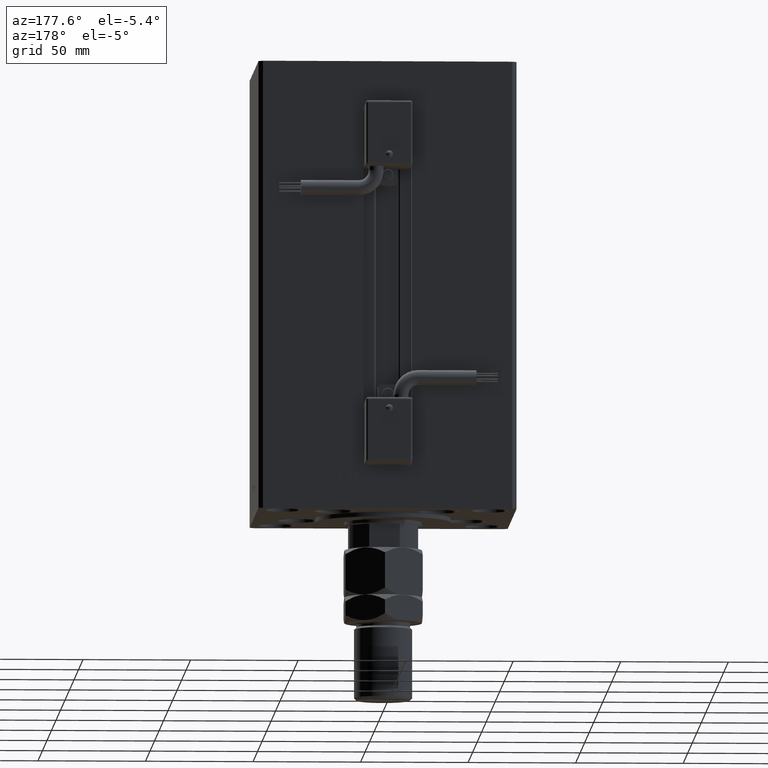
[diagram: clean part render]
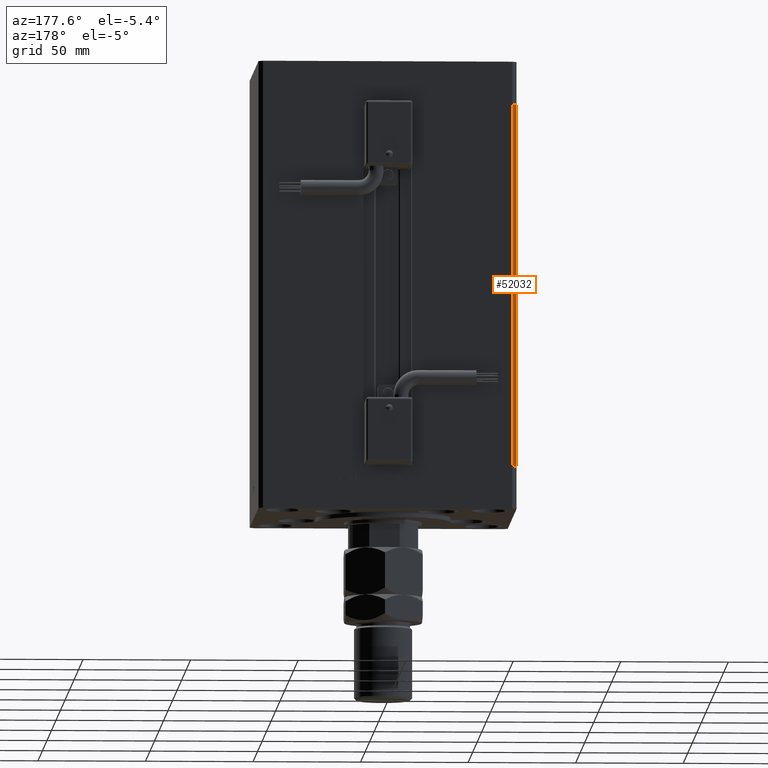
[diagram: same view with one face highlighted and labeled with its STEP entity id]
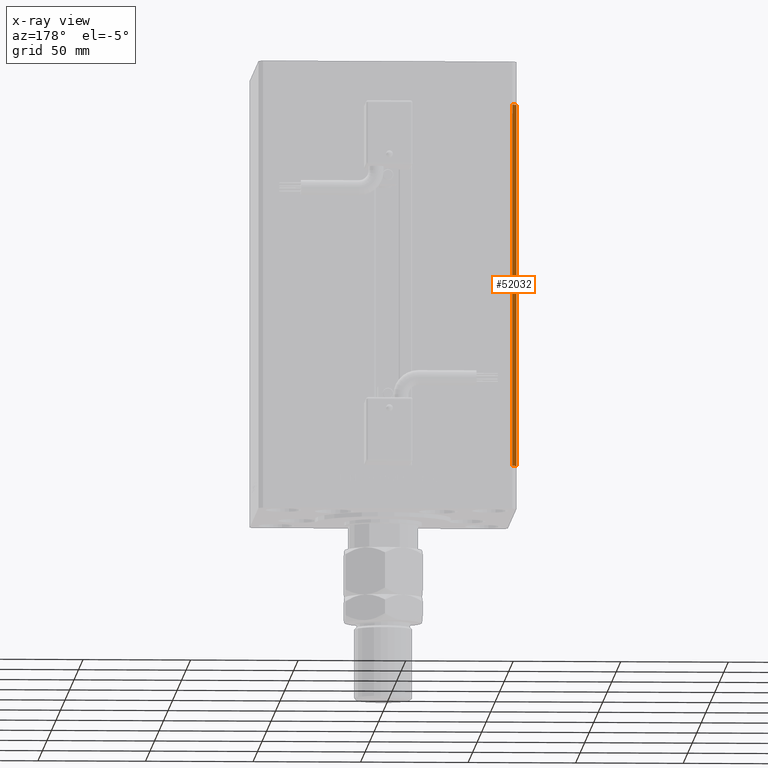
[diagram: x-ray of the same camera — body ghosted, the highlighted face saturated]
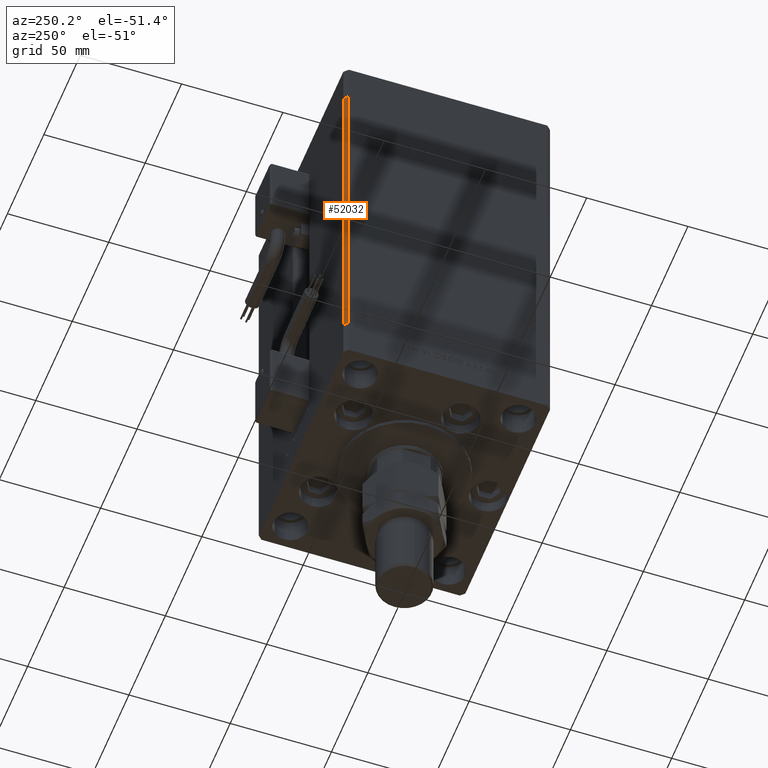
[diagram: same view with one face highlighted and labeled with its STEP entity id]
A machine part, auxiliary view. The second image highlights one B-rep face of the part: STEP entity #52032.
The next image is the same camera in x-ray: the body ghosted, the highlighted face saturated — about 0% of this face is hidden behind the body in this view.
A second angle (auxiliary view) of the same face is appended — the face is thin or edge-on in the first view.
In plain terms, the highlighted planar face has unit normal (0.7071, -0.7071, 0).
Its self-contained STEP definition (entity closure, byte-faithful):
#915 = CARTESIAN_POINT ( 'NONE',  ( -60.00000000000001421, 49.00000000000000000, 0.000000000000000000 ) ) ;
#1183 = EDGE_CURVE ( 'NONE', #9479, #25766, #23037, .T. ) ;
#2482 = VECTOR ( 'NONE', #42178, 1000.000000000000000 ) ;
#3120 = CARTESIAN_POINT ( 'NONE',  ( -57.99999999999999289, 51.00000000000000711, 168.5000000000000000 ) ) ;
#4087 = DIRECTION ( 'NONE',  ( 0.7071067811865500152, 0.7071067811865451302, 0.000000000000000000 ) ) ;
#4660 = VERTEX_POINT ( 'NONE', #3120 ) ;
#9479 = VERTEX_POINT ( 'NONE', #45463 ) ;
#9518 = PLANE ( 'NONE',  #10385 ) ;
#10385 = AXIS2_PLACEMENT_3D ( 'NONE', #20700, #29134, #4087 ) ;
#10441 = LINE ( 'NONE', #18875, #49889 ) ;
#10801 = DIRECTION ( 'NONE',  ( -0.7071067811865500152, -0.7071067811865451302, 0.000000000000000000 ) ) ;
#12730 = LINE ( 'NONE', #34222, #28850 ) ;
#14045 = ORIENTED_EDGE ( 'NONE', *, *, #1183, .T. ) ;
#14223 = EDGE_CURVE ( 'NONE', #4660, #34331, #12730, .T. ) ;
#17357 = DIRECTION ( 'NONE',  ( -0.7071067811865500152, -0.7071067811865451302, 0.000000000000000000 ) ) ;
#18875 = CARTESIAN_POINT ( 'NONE',  ( -57.99999999999999289, 51.00000000000000711, 168.5000000000000000 ) ) ;
#20700 = CARTESIAN_POINT ( 'NONE',  ( -57.99999999999999289, 51.00000000000000711, 168.5000000000000000 ) ) ;
#20818 = VECTOR ( 'NONE', #10801, 1000.000000000000114 ) ;
#22056 = LINE ( 'NONE', #51438, #2482 ) ;
#23037 = LINE ( 'NONE', #26586, #20818 ) ;
#23774 = CARTESIAN_POINT ( 'NONE',  ( -60.00000000000001421, 49.00000000000000000, 168.5000000000000000 ) ) ;
#24485 = EDGE_LOOP ( 'NONE', ( #14045, #44975, #30666, #36975 ) ) ;
#25766 = VERTEX_POINT ( 'NONE', #915 ) ;
#26586 = CARTESIAN_POINT ( 'NONE',  ( -57.99999999999999289, 51.00000000000000711, 0.000000000000000000 ) ) ;
#28850 = VECTOR ( 'NONE', #17357, 1000.000000000000114 ) ;
#29134 = DIRECTION ( 'NONE',  ( 0.7071067811865451302, -0.7071067811865500152, 0.000000000000000000 ) ) ;
#30202 = FACE_OUTER_BOUND ( 'NONE', #24485, .T. ) ;
#30666 = ORIENTED_EDGE ( 'NONE', *, *, #14223, .F. ) ;
#34222 = CARTESIAN_POINT ( 'NONE',  ( -57.99999999999999289, 51.00000000000000711, 168.5000000000000000 ) ) ;
#34331 = VERTEX_POINT ( 'NONE', #23774 ) ;
#35172 = EDGE_CURVE ( 'NONE', #34331, #25766, #22056, .T. ) ;
#35465 = DIRECTION ( 'NONE',  ( -0.000000000000000000, -0.000000000000000000, -1.000000000000000000 ) ) ;
#36975 = ORIENTED_EDGE ( 'NONE', *, *, #37018, .T. ) ;
#37018 = EDGE_CURVE ( 'NONE', #4660, #9479, #10441, .T. ) ;
#42178 = DIRECTION ( 'NONE',  ( -0.000000000000000000, -0.000000000000000000, -1.000000000000000000 ) ) ;
#44975 = ORIENTED_EDGE ( 'NONE', *, *, #35172, .F. ) ;
#45463 = CARTESIAN_POINT ( 'NONE',  ( -57.99999999999999289, 51.00000000000000711, 0.000000000000000000 ) ) ;
#49889 = VECTOR ( 'NONE', #35465, 1000.000000000000000 ) ;
#51438 = CARTESIAN_POINT ( 'NONE',  ( -60.00000000000001421, 49.00000000000000000, 168.5000000000000000 ) ) ;
#52032 = ADVANCED_FACE ( 'NONE', ( #30202 ), #9518, .F. ) ;